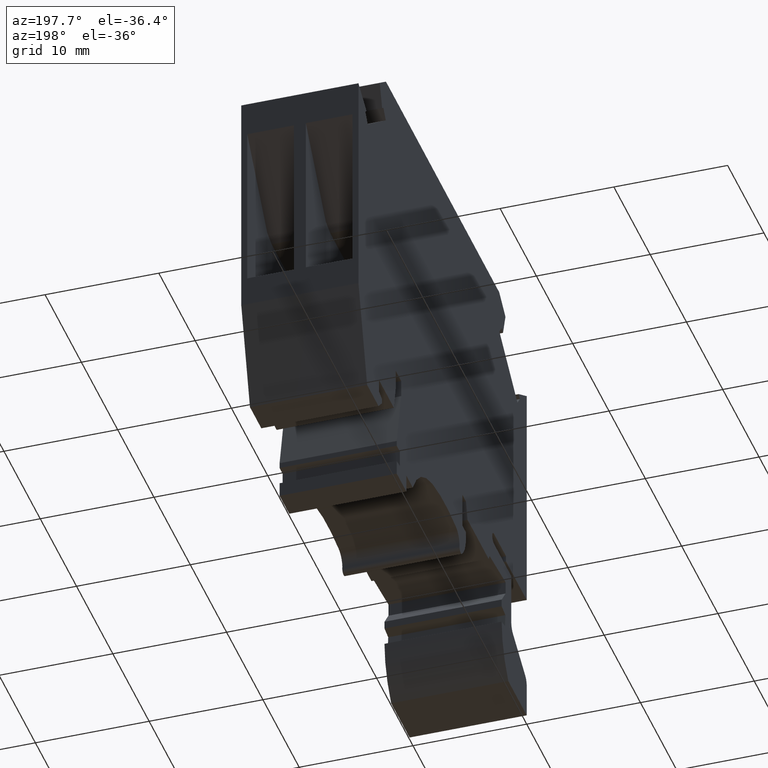
[diagram: clean part render]
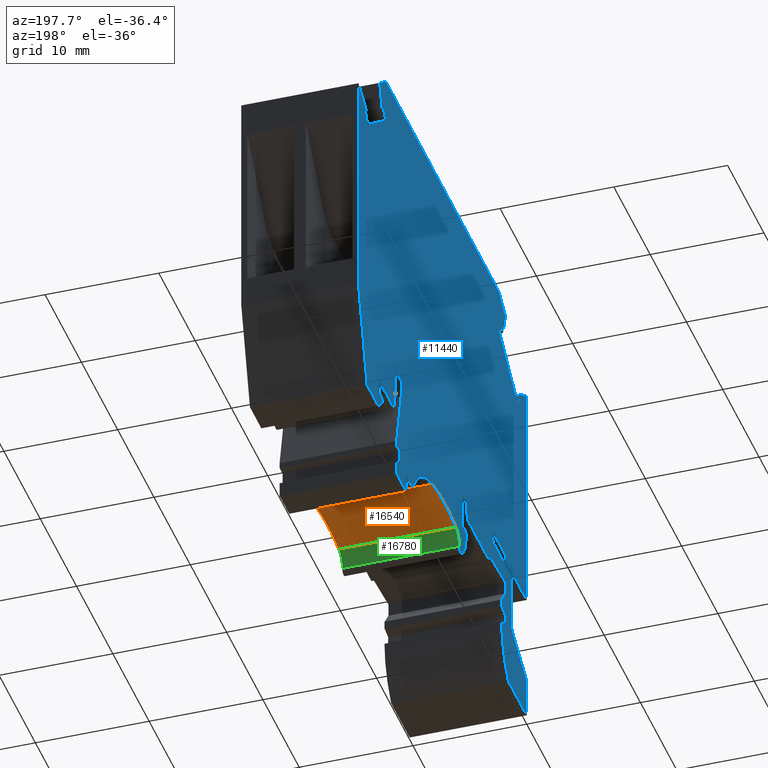
[diagram: same view with three faces highlighted in distinct colors, each labeled with its STEP entity id]
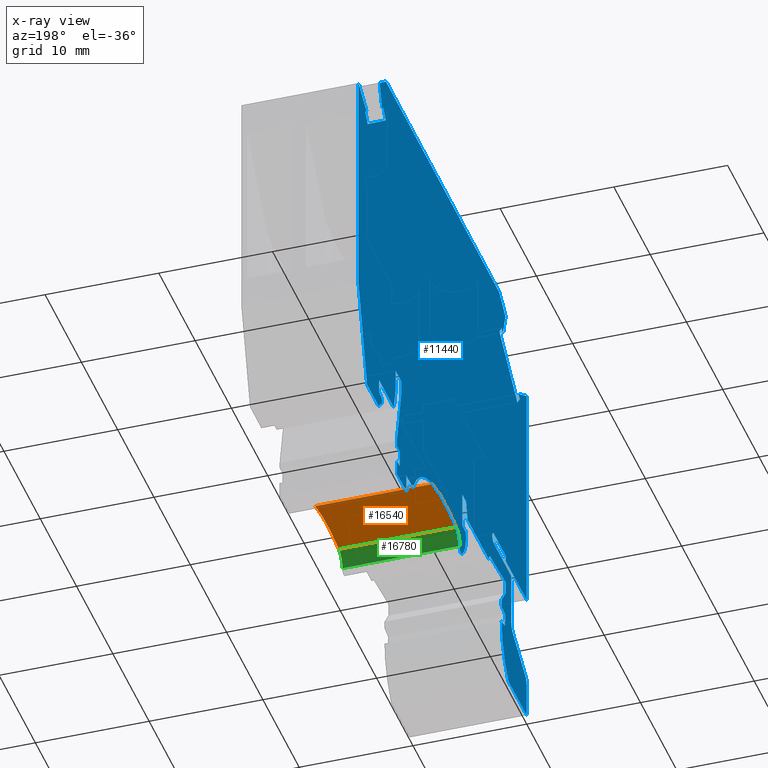
[diagram: x-ray of the same camera — body ghosted, the three highlighted faces saturated]
A machine part, auxiliary view with three faces highlighted in distinct colors.
The next image is the same camera in x-ray (body ghosted, the three faces saturated) — at least one of them is partly hidden behind the body in this view.
Their STEP definitions:

[orange] entity #16540 — the highlighted cylindrical surface (partial cylindrical patch) has radius 16.2 mm, axis along (1, -0, 0).
#3330=CARTESIAN_POINT('',(-18.8912739295069,10.0555369279165,10.3));
#3340=VERTEX_POINT('',#3330);
#3370=CARTESIAN_POINT('',(-22.3520985338077,-5.77047624844183,10.3));
#3380=DIRECTION('',(0.,0.,1.));
#3390=DIRECTION('',(1.,0.,0.));
#3400=AXIS2_PLACEMENT_3D('',#3370,#3380,#3390);
#3410=CIRCLE('',#3400,16.2);
#3420=CARTESIAN_POINT('',(-25.3616999403209,10.1475104136305,10.3));
#3430=VERTEX_POINT('',#3420);
#3440=EDGE_CURVE('',#3340,#3430,#3410,.T.);
#8020=CARTESIAN_POINT('',(-25.3616999403209,10.1475104136305,
-7.105427357601E-15));
#8030=VERTEX_POINT('',#8020);
#8060=CARTESIAN_POINT('',(-22.3520985338077,-5.77047624844183,
3.5527136788005E-15));
#8070=DIRECTION('',(0.,0.,1.));
#8080=DIRECTION('',(1.,0.,0.));
#8090=AXIS2_PLACEMENT_3D('',#8060,#8070,#8080);
#8100=CIRCLE('',#8090,16.2);
#8110=CARTESIAN_POINT('',(-18.8912739295069,10.0555369279165,
-7.105427357601E-15));
#8120=VERTEX_POINT('',#8110);
#8130=EDGE_CURVE('',#8120,#8030,#8100,.T.);
#16330=CARTESIAN_POINT('',(-22.3520985338077,-5.77047624844183,5.15));
#16340=DIRECTION('',(0.,0.,1.));
#16350=DIRECTION('',(1.,0.,0.));
#16360=AXIS2_PLACEMENT_3D('',#16330,#16340,#16350);
#16370=CYLINDRICAL_SURFACE('',#16360,16.2);
#16380=ORIENTED_EDGE('',*,*,#3440,.T.);
#16390=CARTESIAN_POINT('',(-18.8912739295069,10.0555369279165,5.15));
#16400=DIRECTION('',(0.,0.,-1.));
#16410=VECTOR('',#16400,1.);
#16420=LINE('',#16390,#16410);
#16430=EDGE_CURVE('',#3340,#8120,#16420,.T.);
#16440=ORIENTED_EDGE('',*,*,#16430,.F.);
#16450=ORIENTED_EDGE('',*,*,#8130,.F.);
#16460=CARTESIAN_POINT('',(-25.3616999403209,10.1475104136305,5.15));
#16470=DIRECTION('',(0.,0.,-1.));
#16480=VECTOR('',#16470,1.);
#16490=LINE('',#16460,#16480);
#16500=EDGE_CURVE('',#3430,#8030,#16490,.T.);
#16510=ORIENTED_EDGE('',*,*,#16500,.T.);
#16520=EDGE_LOOP('',(#16510,#16450,#16440,#16380));
#16530=FACE_OUTER_BOUND('',#16520,.T.);
#16540=ADVANCED_FACE('',(#16530),#16370,.F.);

[blue] entity #11440 — the highlighted planar face has unit normal (1, -0, 0).
#5760=CARTESIAN_POINT('',(0.,0.,0.));
#5770=DIRECTION('',(0.,0.,1.));
#5780=DIRECTION('',(1.,0.,0.));
#5790=AXIS2_PLACEMENT_3D('',#5760,#5770,#5780);
#5800=PLANE('',#5790);
#5810=CARTESIAN_POINT('',(-39.1520985338078,1.77635683940025E-15,
-7.105427357601E-15));
#5820=DIRECTION('',(0.,1.,0.));
#5830=VECTOR('',#5820,1.);
#5840=LINE('',#5810,#5830);
#5850=CARTESIAN_POINT('',(-39.1520985338078,16.2295237515583,
-7.105427357601E-15));
#5860=VERTEX_POINT('',#5850);
#5870=CARTESIAN_POINT('',(-39.1520985338078,16.7795237515581,
-7.105427357601E-15));
#5880=VERTEX_POINT('',#5870);
#5890=EDGE_CURVE('',#5860,#5880,#5840,.T.);
#5900=ORIENTED_EDGE('',*,*,#5890,.F.);
#5910=CARTESIAN_POINT('',(0.,16.7795237515581,-7.105427357601E-15));
#5920=DIRECTION('',(-1.,0.,0.));
#5930=VECTOR('',#5920,1.);
#5940=LINE('',#5910,#5930);
#5950=CARTESIAN_POINT('',(-35.8770985338078,16.7795237515581,
-7.105427357601E-15));
#5960=VERTEX_POINT('',#5950);
#5970=EDGE_CURVE('',#5960,#5880,#5940,.T.);
#5980=ORIENTED_EDGE('',*,*,#5970,.T.);
#5990=CARTESIAN_POINT('',(-35.8770985338078,16.2545237515581,
3.5527136788005E-15));
#6000=DIRECTION('',(0.,0.,-1.));
#6010=DIRECTION('',(-1.,0.,0.));
#6020=AXIS2_PLACEMENT_3D('',#5990,#6000,#6010);
#6030=CIRCLE('',#6020,0.525);
#6040=CARTESIAN_POINT('',(-35.8770985306198,15.7295237515581,
-7.105427357601E-15));
#6050=VERTEX_POINT('',#6040);
#6060=EDGE_CURVE('',#5960,#6050,#6030,.T.);
#6070=ORIENTED_EDGE('',*,*,#6060,.F.);
#6080=CARTESIAN_POINT('',(-56.8069065338077,15.7295237515581,
3.5527136788005E-15));
#6090=DIRECTION('',(-1.,-3.21581169129174E-15,0.));
#6100=VECTOR('',#6090,1.);
#6110=LINE('',#6080,#6100);
#6120=CARTESIAN_POINT('',(-40.6020985338077,15.7295237515581,
-7.105427357601E-15));
#6130=VERTEX_POINT('',#6120);
#6140=EDGE_CURVE('',#6050,#6130,#6110,.T.);
#6150=ORIENTED_EDGE('',*,*,#6140,.F.);
#6160=CARTESIAN_POINT('',(-40.6020985338077,9.53385075155828,
3.5527136788005E-15));
#6170=DIRECTION('',(0.,1.,0.));
#6180=VECTOR('',#6170,1.);
#6190=LINE('',#6160,#6180);
#6200=CARTESIAN_POINT('',(-40.6020985338077,10.8802279070745,
-7.105427357601E-15));
#6210=VERTEX_POINT('',#6200);
#6220=EDGE_CURVE('',#6210,#6130,#6190,.T.);
#6230=ORIENTED_EDGE('',*,*,#6220,.T.);
#6240=CARTESIAN_POINT('',(-41.6020985338077,10.8802279070745,
3.5527136788005E-15));
#6250=DIRECTION('',(0.,0.,-1.));
#6260=DIRECTION('',(-1.,0.,0.));
#6270=AXIS2_PLACEMENT_3D('',#6240,#6250,#6260);
#6280=CIRCLE('',#6270,1.);
#6290=CARTESIAN_POINT('',(-41.1020985338077,10.01420250329,
-7.105427357601E-15));
#6300=VERTEX_POINT('',#6290);
#6310=EDGE_CURVE('',#6210,#6300,#6280,.T.);
#6320=ORIENTED_EDGE('',*,*,#6310,.F.);
#6330=CARTESIAN_POINT('',(-58.8819065338077,-0.250974431649825,
3.5527136788005E-15));
#6340=DIRECTION('',(0.866025403784439,0.5,0.));
#6350=VECTOR('',#6340,1.);
#6360=LINE('',#6330,#6350);
#6370=CARTESIAN_POINT('',(-44.4020985338231,8.10894661499089,
-7.105427357601E-15));
#6380=VERTEX_POINT('',#6370);
#6390=EDGE_CURVE('',#6380,#6300,#6360,.T.);
#6400=ORIENTED_EDGE('',*,*,#6390,.T.);
#6410=CARTESIAN_POINT('',(-43.9520985338077,7.32952375155828,
3.5527136788005E-15));
#6420=DIRECTION('',(0.,0.,1.));
#6430=DIRECTION('',(0.,-1.,0.));
#6440=AXIS2_PLACEMENT_3D('',#6410,#6420,#6430);
#6450=CIRCLE('',#6440,0.900000000030733);
#6460=CARTESIAN_POINT('',(-44.8520985338077,7.32952375155828,
3.5527136788005E-15));
#6470=VERTEX_POINT('',#6460);
#6480=EDGE_CURVE('',#6380,#6470,#6450,.T.);
#6490=ORIENTED_EDGE('',*,*,#6480,.F.);
#6500=CARTESIAN_POINT('',(-44.8520985338077,9.53385075155828,
3.5527136788005E-15));
#6510=DIRECTION('',(0.,1.,0.));
#6520=VECTOR('',#6510,1.);
#6530=LINE('',#6500,#6520);
#6540=CARTESIAN_POINT('',(-44.8520985338077,4.22952375155828,
3.5527136788005E-15));
#6550=VERTEX_POINT('',#6540);
#6560=EDGE_CURVE('',#6550,#6470,#6530,.T.);
#6570=ORIENTED_EDGE('',*,*,#6560,.T.);
#6580=CARTESIAN_POINT('',(-56.8069065338077,4.22952375155828,
3.5527136788005E-15));
#6590=DIRECTION('',(-1.,0.,0.));
#6600=VECTOR('',#6590,1.);
#6610=LINE('',#6580,#6600);
#6620=CARTESIAN_POINT('',(-39.7810787227897,4.22952375155828,
-7.105427357601E-15));
#6630=VERTEX_POINT('',#6620);
#6640=EDGE_CURVE('',#6630,#6550,#6610,.T.);
#6650=ORIENTED_EDGE('',*,*,#6640,.T.);
#6660=CARTESIAN_POINT('',(-45.4194206776555,9.12952375155828,
3.5527136788005E-15));
#6670=DIRECTION('',(0.,0.,1.));
#6680=DIRECTION('',(1.,0.,0.));
#6690=AXIS2_PLACEMENT_3D('',#6660,#6670,#6680);
#6700=CIRCLE('',#6690,7.47);
#6710=CARTESIAN_POINT('',(-37.949420700094,9.12894476048504,
-7.105427357601E-15));
#6720=VERTEX_POINT('',#6710);
#6730=EDGE_CURVE('',#6630,#6720,#6700,.T.);
#6740=ORIENTED_EDGE('',*,*,#6730,.F.);
#6750=CARTESIAN_POINT('',(0.,0.923664609113366,-7.105427357601E-15));
#6760=DIRECTION('',(0.977414165439867,-0.211332792527539,0.));
#6770=VECTOR('',#6760,1.);
#6780=LINE('',#6750,#6770);
#6790=CARTESIAN_POINT('',(-38.8770985338077,9.32952375155828,
-7.105427357601E-15));
#6800=VERTEX_POINT('',#6790);
#6810=EDGE_CURVE('',#6800,#6720,#6780,.T.);
#6820=ORIENTED_EDGE('',*,*,#6810,.T.);
#6830=CARTESIAN_POINT('',(-38.8941257838077,9.53385075155828,
3.5527136788005E-15));
#6840=DIRECTION('',(0.0830454798537353,-0.99654575824488,0.));
#6850=VECTOR('',#6840,1.);
#6860=LINE('',#6830,#6850);
#6870=CARTESIAN_POINT('',(-38.9770985338077,10.5295237515583,
-7.105427357601E-15));
#6880=VERTEX_POINT('',#6870);
#6890=EDGE_CURVE('',#6880,#6800,#6860,.T.);
#6900=ORIENTED_EDGE('',*,*,#6890,.T.);
#6910=CARTESIAN_POINT('',(-58.7319065338077,6.67492706863146,
3.5527136788005E-15));
#6920=DIRECTION('',(-0.981490592025699,-0.191510359419648,0.));
#6930=VECTOR('',#6920,1.);
#6940=LINE('',#6910,#6930);
#6950=CARTESIAN_POINT('',(-37.9520985338077,10.7295237515583,
-7.105427357601E-15));
#6960=VERTEX_POINT('',#6950);
#6970=EDGE_CURVE('',#6960,#6880,#6940,.T.);
#6980=ORIENTED_EDGE('',*,*,#6970,.T.);
#6990=CARTESIAN_POINT('',(-37.9520985338077,9.53385075155828,
3.5527136788005E-15));
#7000=DIRECTION('',(0.,-1.,0.));
#7010=VECTOR('',#7000,1.);
#7020=LINE('',#6990,#7010);
#7030=CARTESIAN_POINT('',(-37.9520985338077,11.4295237515583,
-7.105427357601E-15));
#7040=VERTEX_POINT('',#7030);
#7050=EDGE_CURVE('',#7040,#6960,#7020,.T.);
#7060=ORIENTED_EDGE('',*,*,#7050,.T.);
#7070=CARTESIAN_POINT('',(-36.4626411766648,9.53385075155828,
3.5527136788005E-15));
#7080=DIRECTION('',(0.617821551931904,-0.786318338822423,0.));
#7090=VECTOR('',#7080,1.);
#7100=LINE('',#7070,#7090);
#7110=CARTESIAN_POINT('',(-39.0520985338077,12.8295237515583,
3.5527136788005E-15));
#7120=VERTEX_POINT('',#7110);
#7130=EDGE_CURVE('',#7120,#7040,#7100,.T.);
#7140=ORIENTED_EDGE('',*,*,#7130,.T.);
#7150=CARTESIAN_POINT('',(-39.0520985338077,9.53385075155828,
3.5527136788005E-15));
#7160=DIRECTION('',(0.,-1.,0.));
#7170=VECTOR('',#7160,1.);
#7180=LINE('',#7150,#7170);
#7190=CARTESIAN_POINT('',(-39.0520985338077,13.9795237515583,
-7.105427357601E-15));
#7200=VERTEX_POINT('',#7190);
#7210=EDGE_CURVE('',#7200,#7120,#7180,.T.);
#7220=ORIENTED_EDGE('',*,*,#7210,.T.);
#7230=CARTESIAN_POINT('',(-56.8069065338077,15.3882122951596,
3.5527136788005E-15));
#7240=DIRECTION('',(-0.996867266307106,0.0790926884446175,0.));
#7250=VECTOR('',#7240,1.);
#7260=LINE('',#7230,#7250);
#7270=CARTESIAN_POINT('',(-34.6407736684025,13.6295237515583,
-7.105427357601E-15));
#7280=VERTEX_POINT('',#7270);
#7290=EDGE_CURVE('',#7280,#7200,#7260,.T.);
#7300=ORIENTED_EDGE('',*,*,#7290,.T.);
#7310=CARTESIAN_POINT('',(-26.771764461514,1.77635683940025E-15,
-7.105427357601E-15));
#7320=DIRECTION('',(-0.5,0.866025403784439,0.));
#7330=VECTOR('',#7320,1.);
#7340=LINE('',#7310,#7330);
#7350=CARTESIAN_POINT('',(-34.3520985338076,13.1295237515581,
-7.105427357601E-15));
#7360=VERTEX_POINT('',#7350);
#7370=EDGE_CURVE('',#7360,#7280,#7340,.T.);
#7380=ORIENTED_EDGE('',*,*,#7370,.T.);
#7390=CARTESIAN_POINT('',(0.,13.1295237515583,-7.105427357601E-15));
#7400=DIRECTION('',(-1.,-5.25286014369684E-15,0.));
#7410=VECTOR('',#7400,1.);
#7420=LINE('',#7390,#7410);
#7430=CARTESIAN_POINT('',(-28.5520985338077,13.1295237515582,
-7.105427357601E-15));
#7440=VERTEX_POINT('',#7430);
#7450=EDGE_CURVE('',#7440,#7360,#7420,.T.);
#7460=ORIENTED_EDGE('',*,*,#7450,.T.);
#7470=CARTESIAN_POINT('',(-29.515556210404,9.53385075155829,
3.5527136788005E-15));
#7480=DIRECTION('',(0.258819045102504,0.965925826289073,0.));
#7490=VECTOR('',#7480,1.);
#7500=LINE('',#7470,#7490);
#7510=CARTESIAN_POINT('',(-28.1233798259179,14.7295237515582,
-7.105427357601E-15));
#7520=VERTEX_POINT('',#7510);
#7530=EDGE_CURVE('',#7440,#7520,#7500,.T.);
#7540=ORIENTED_EDGE('',*,*,#7530,.F.);
#7550=CARTESIAN_POINT('',(-56.8069065338077,14.7295237515582,
3.5527136788005E-15));
#7560=DIRECTION('',(-1.,0.,0.));
#7570=VECTOR('',#7560,1.);
#7580=LINE('',#7550,#7570);
#7590=CARTESIAN_POINT('',(-27.1270985338077,14.7295237515582,
-7.105427357601E-15));
#7600=VERTEX_POINT('',#7590);
#7610=EDGE_CURVE('',#7600,#7520,#7580,.T.);
#7620=ORIENTED_EDGE('',*,*,#7610,.T.);
#7630=CARTESIAN_POINT('',(-27.1270985338077,9.53385075155829,
3.5527136788005E-15));
#7640=DIRECTION('',(0.,1.,0.));
#7650=VECTOR('',#7640,1.);
#7660=LINE('',#7630,#7650);
#7670=CARTESIAN_POINT('',(-27.1270985338077,11.5119792835918,
-7.105427357601E-15));
#7680=VERTEX_POINT('',#7670);
#7690=EDGE_CURVE('',#7680,#7600,#7660,.T.);
#7700=ORIENTED_EDGE('',*,*,#7690,.T.);
#7710=CARTESIAN_POINT('',(-21.6770985338077,11.5119792835918,
3.5527136788005E-15));
#7720=DIRECTION('',(1.,0.,0.));
#7730=VECTOR('',#7720,1.);
#7740=LINE('',#7710,#7730);
#7750=CARTESIAN_POINT('',(-28.0887237545537,11.5119792835918,
-7.105427357601E-15));
#7760=VERTEX_POINT('',#7750);
#7770=EDGE_CURVE('',#7760,#7680,#7740,.T.);
#7780=ORIENTED_EDGE('',*,*,#7770,.T.);
#7790=CARTESIAN_POINT('',(-24.779452258914,10.9911893373118,
3.5527136788005E-15));
#7800=DIRECTION('',(0.,0.,1.));
#7810=DIRECTION('',(1.,0.,0.));
#7820=AXIS2_PLACEMENT_3D('',#7790,#7800,#7810);
#7830=CIRCLE('',#7820,3.34999999999999);
#7840=CARTESIAN_POINT('',(-26.9911861643017,8.47509451959159,
-7.105427357601E-15));
#7850=VERTEX_POINT('',#7840);
#7860=EDGE_CURVE('',#7760,#7850,#7830,.T.);
#7870=ORIENTED_EDGE('',*,*,#7860,.F.);
#7880=CARTESIAN_POINT('',(-26.7270985338077,8.77552375155818,
3.5527136788005E-15));
#7890=DIRECTION('',(0.,0.,1.));
#7900=DIRECTION('',(1.,0.,0.));
#7910=AXIS2_PLACEMENT_3D('',#7880,#7890,#7900);
#7920=CIRCLE('',#7910,0.399999999999988);
#7930=CARTESIAN_POINT('',(-26.3300155260562,8.82374288629714,
-7.105427357601E-15));
#7940=VERTEX_POINT('',#7930);
#7950=EDGE_CURVE('',#7850,#7940,#7920,.T.);
#7960=ORIENTED_EDGE('',*,*,#7950,.F.);
#7970=CARTESIAN_POINT('',(-25.1387665028014,8.96840029051405,
3.5527136788005E-15));
#7980=DIRECTION('',(0.,0.,1.));
#7990=DIRECTION('',(1.,0.,0.));
#8000=AXIS2_PLACEMENT_3D('',#7970,#7980,#7990);
#8010=CIRCLE('',#8000,1.19999999999999);
#8020=CARTESIAN_POINT('',(-25.3616999403209,10.1475104136305,
-7.105427357601E-15));
#8030=VERTEX_POINT('',#8020);
#8040=EDGE_CURVE('',#8030,#7940,#8010,.T.);
#8050=ORIENTED_EDGE('',*,*,#8040,.T.);
#8060=CARTESIAN_POINT('',(-22.3520985338077,-5.77047624844183,
3.5527136788005E-15));
#8070=DIRECTION('',(0.,0.,1.));
#8080=DIRECTION('',(1.,0.,0.));
#8090=AXIS2_PLACEMENT_3D('',#8060,#8070,#8080);
#8100=CIRCLE('',#8090,16.2);
#8110=CARTESIAN_POINT('',(-18.8912739295069,10.0555369279165,
-7.105427357601E-15));
#8120=VERTEX_POINT('',#8110);
#8130=EDGE_CURVE('',#8120,#8030,#8100,.T.);
#8140=ORIENTED_EDGE('',*,*,#8130,.T.);
#8150=CARTESIAN_POINT('',(-20.6003231168159,2.24022177909756,
3.5527136788005E-15));
#8160=DIRECTION('',(0.,0.,1.));
#8170=DIRECTION('',(1.,0.,0.));
#8180=AXIS2_PLACEMENT_3D('',#8150,#8160,#8170);
#8190=CIRCLE('',#8180,8.00000000000001);
#8200=CARTESIAN_POINT('',(-13.4760350012745,5.87952375155818,
-7.105427357601E-15));
#8210=VERTEX_POINT('',#8200);
#8220=EDGE_CURVE('',#8210,#8120,#8190,.T.);
#8230=ORIENTED_EDGE('',*,*,#8220,.T.);
#8240=CARTESIAN_POINT('',(-56.8069065338077,5.87952375155818,
3.5527136788005E-15));
#8250=DIRECTION('',(-1.,0.,0.));
#8260=VECTOR('',#8250,1.);
#8270=LINE('',#8240,#8260);
#8280=CARTESIAN_POINT('',(-11.7020985338077,5.87952375155818,
-7.105427357601E-15));
#8290=VERTEX_POINT('',#8280);
#8300=EDGE_CURVE('',#8290,#8210,#8270,.T.);
#8310=ORIENTED_EDGE('',*,*,#8300,.T.);
#8320=CARTESIAN_POINT('',(-11.7020985338077,9.53385075155829,
3.5527136788005E-15));
#8330=DIRECTION('',(0.,-1.,0.));
#8340=VECTOR('',#8330,1.);
#8350=LINE('',#8320,#8340);
#8360=CARTESIAN_POINT('',(-11.7020985338077,4.22952375155818,
-7.105427357601E-15));
#8370=VERTEX_POINT('',#8360);
#8380=EDGE_CURVE('',#8290,#8370,#8350,.T.);
#8390=ORIENTED_EDGE('',*,*,#8380,.F.);
#8400=CARTESIAN_POINT('',(0.,4.22952375155818,-7.105427357601E-15));
#8410=DIRECTION('',(-1.,0.,0.));
#8420=VECTOR('',#8410,1.);
#8430=LINE('',#8400,#8420);
#8440=CARTESIAN_POINT('',(-9.0520985338077,4.22952375155818,
-7.105427357601E-15));
#8450=VERTEX_POINT('',#8440);
#8460=EDGE_CURVE('',#8450,#8370,#8430,.T.);
#8470=ORIENTED_EDGE('',*,*,#8460,.T.);
#8480=CARTESIAN_POINT('',(-9.0520985338077,1.77635683940025E-15,
-7.105427357601E-15));
#8490=DIRECTION('',(0.,1.,0.));
#8500=VECTOR('',#8490,1.);
#8510=LINE('',#8480,#8500);
#8520=CARTESIAN_POINT('',(-9.0520985338077,5.53713244721035,
-7.105427357601E-15));
#8530=VERTEX_POINT('',#8520);
#8540=EDGE_CURVE('',#8450,#8530,#8510,.T.);
#8550=ORIENTED_EDGE('',*,*,#8540,.F.);
#8560=CARTESIAN_POINT('',(0.,4.55320869353561,-7.105427357601E-15));
#8570=DIRECTION('',(0.994144463069457,-0.108059180768419,0.));
#8580=VECTOR('',#8570,1.);
#8590=LINE('',#8560,#8580);
#8600=CARTESIAN_POINT('',(-9.9020985338077,5.62952375155818,
-7.105427357601E-15));
#8610=VERTEX_POINT('',#8600);
#8620=EDGE_CURVE('',#8610,#8530,#8590,.T.);
#8630=ORIENTED_EDGE('',*,*,#8620,.T.);
#8640=CARTESIAN_POINT('',(-9.90209853380769,9.53385075155829,
3.5527136788005E-15));
#8650=DIRECTION('',(0.,-1.,0.));
#8660=VECTOR('',#8650,1.);
#8670=LINE('',#8640,#8660);
#8680=CARTESIAN_POINT('',(-9.90209853380769,7.12952375155817,
-7.105427357601E-15));
#8690=VERTEX_POINT('',#8680);
#8700=EDGE_CURVE('',#8690,#8610,#8670,.T.);
#8710=ORIENTED_EDGE('',*,*,#8700,.T.);
#8720=CARTESIAN_POINT('',(-56.8069065338077,7.12952375155817,
3.5527136788005E-15));
#8730=DIRECTION('',(-1.,0.,0.));
#8740=VECTOR('',#8730,1.);
#8750=LINE('',#8720,#8740);
#8760=CARTESIAN_POINT('',(-9.0520985338077,7.12952375155817,
-7.105427357601E-15));
#8770=VERTEX_POINT('',#8760);
#8780=EDGE_CURVE('',#8770,#8690,#8750,.T.);
#8790=ORIENTED_EDGE('',*,*,#8780,.T.);
#8800=CARTESIAN_POINT('',(-9.0520985338077,9.53385075155829,
3.5527136788005E-15));
#8810=DIRECTION('',(0.,1.,0.));
#8820=VECTOR('',#8810,1.);
#8830=LINE('',#8800,#8820);
#8840=CARTESIAN_POINT('',(-9.0520985338077,7.62952375155818,
-7.105427357601E-15));
#8850=VERTEX_POINT('',#8840);
#8860=EDGE_CURVE('',#8770,#8850,#8830,.T.);
#8870=ORIENTED_EDGE('',*,*,#8860,.F.);
#8880=CARTESIAN_POINT('',(-9.47427766563456,9.53385075155829,
3.5527136788005E-15));
#8890=DIRECTION('',(0.216439613938103,-0.976296007119933,0.));
#8900=VECTOR('',#8890,1.);
#8910=LINE('',#8880,#8900);
#8920=CARTESIAN_POINT('',(-10.2770985338077,13.1551416685442,
-7.105427357601E-15));
#8930=VERTEX_POINT('',#8920);
#8940=EDGE_CURVE('',#8930,#8850,#8910,.T.);
#8950=ORIENTED_EDGE('',*,*,#8940,.T.);
#8960=CARTESIAN_POINT('',(-10.2770985338077,9.53385075155829,
3.5527136788005E-15));
#8970=DIRECTION('',(0.,-1.,0.));
#8980=VECTOR('',#8970,1.);
#8990=LINE('',#8960,#8980);
#9000=CARTESIAN_POINT('',(-10.2770985338077,14.7295237515582,
-7.105427357601E-15));
#9010=VERTEX_POINT('',#9000);
#9020=EDGE_CURVE('',#9010,#8930,#8990,.T.);
#9030=ORIENTED_EDGE('',*,*,#9020,.T.);
#9040=CARTESIAN_POINT('',(-56.8069065338077,14.7295237515582,
3.5527136788005E-15));
#9050=DIRECTION('',(-1.,0.,0.));
#9060=VECTOR('',#9050,1.);
#9070=LINE('',#9040,#9060);
#9080=CARTESIAN_POINT('',(-8.77709853380779,14.7295237515582,
-7.105427357601E-15));
#9090=VERTEX_POINT('',#9080);
#9100=EDGE_CURVE('',#9090,#9010,#9070,.T.);
#9110=ORIENTED_EDGE('',*,*,#9100,.T.);
#9120=CARTESIAN_POINT('',(-8.77709853380779,9.53385075155829,
3.5527136788005E-15));
#9130=DIRECTION('',(0.,1.,0.));
#9140=VECTOR('',#9130,1.);
#9150=LINE('',#9120,#9140);
#9160=CARTESIAN_POINT('',(-8.77709853380779,12.8976457159808,
-7.105427357601E-15));
#9170=VERTEX_POINT('',#9160);
#9180=EDGE_CURVE('',#9170,#9090,#9150,.T.);
#9190=ORIENTED_EDGE('',*,*,#9180,.T.);
#9200=CARTESIAN_POINT('',(-8.0313631439701,9.53385075155829,
3.5527136788005E-15));
#9210=DIRECTION('',(0.216439613938109,-0.976296007119932,0.));
#9220=VECTOR('',#9210,1.);
#9230=LINE('',#9200,#9220);
#9240=CARTESIAN_POINT('',(-8.25209853380777,10.5295237515582,
-7.105427357601E-15));
#9250=VERTEX_POINT('',#9240);
#9260=EDGE_CURVE('',#9170,#9250,#9230,.T.);
#9270=ORIENTED_EDGE('',*,*,#9260,.F.);
#9280=CARTESIAN_POINT('',(-56.8069065338077,10.5295237515582,
3.5527136788005E-15));
#9290=DIRECTION('',(-1.,2.71413735556692E-16,0.));
#9300=VECTOR('',#9290,1.);
#9310=LINE('',#9280,#9300);
#9320=CARTESIAN_POINT('',(-4.17709853380779,10.5295237515582,
-7.105427357601E-15));
#9330=VERTEX_POINT('',#9320);
#9340=EDGE_CURVE('',#9330,#9250,#9310,.T.);
#9350=ORIENTED_EDGE('',*,*,#9340,.T.);
#9360=CARTESIAN_POINT('',(-4.1770985338078,9.53385075155829,
3.5527136788005E-15));
#9370=DIRECTION('',(0.,1.,0.));
#9380=VECTOR('',#9370,1.);
#9390=LINE('',#9360,#9380);
#9400=CARTESIAN_POINT('',(-4.17709853380779,9.3295237515582,
-7.105427357601E-15));
#9410=VERTEX_POINT('',#9400);
#9420=EDGE_CURVE('',#9410,#9330,#9390,.T.);
#9430=ORIENTED_EDGE('',*,*,#9420,.T.);
#9440=CARTESIAN_POINT('',(-56.8069065338077,-3.82792824844155,
3.5527136788005E-15));
#9450=DIRECTION('',(-0.970142500145333,-0.242535625036329,0.));
#9460=VECTOR('',#9450,1.);
#9470=LINE('',#9440,#9460);
#9480=CARTESIAN_POINT('',(-4.97709853380779,9.12952375155822,
-7.105427357601E-15));
#9490=VERTEX_POINT('',#9480);
#9500=EDGE_CURVE('',#9410,#9490,#9470,.T.);
#9510=ORIENTED_EDGE('',*,*,#9500,.F.);
#9520=CARTESIAN_POINT('',(-4.97709853380779,9.53385075155829,
3.5527136788005E-15));
#9530=DIRECTION('',(0.,1.,0.));
#9540=VECTOR('',#9530,1.);
#9550=LINE('',#9520,#9540);
#9560=CARTESIAN_POINT('',(-4.97709853380779,8.67952375155819,
-7.105427357601E-15));
#9570=VERTEX_POINT('',#9560);
#9580=EDGE_CURVE('',#9570,#9490,#9550,.T.);
#9590=ORIENTED_EDGE('',*,*,#9580,.T.);
#9600=CARTESIAN_POINT('',(-56.8069065338077,60.5093317515567,
3.5527136788005E-15));
#9610=DIRECTION('',(-0.707106781186557,0.707106781186538,0.));
#9620=VECTOR('',#9610,1.);
#9630=LINE('',#9600,#9620);
#9640=CARTESIAN_POINT('',(-4.02709853380777,7.7295237515582,
-7.105427357601E-15));
#9650=VERTEX_POINT('',#9640);
#9660=EDGE_CURVE('',#9650,#9570,#9630,.T.);
#9670=ORIENTED_EDGE('',*,*,#9660,.T.);
#9680=CARTESIAN_POINT('',(-56.8069065338077,7.7295237515582,
3.5527136788005E-15));
#9690=DIRECTION('',(1.,0.,0.));
#9700=VECTOR('',#9690,1.);
#9710=LINE('',#9680,#9700);
#9720=CARTESIAN_POINT('',(-0.892444557849712,7.7295237515582,
-7.105427357601E-15));
#9730=VERTEX_POINT('',#9720);
#9740=EDGE_CURVE('',#9650,#9730,#9710,.T.);
#9750=ORIENTED_EDGE('',*,*,#9740,.F.);
#9760=CARTESIAN_POINT('',(-0.408976595318013,9.53385075155829,
3.5527136788005E-15));
#9770=DIRECTION('',(-0.258819045102521,-0.965925826289068,0.));
#9780=VECTOR('',#9770,1.);
#9790=LINE('',#9760,#9780);
#9800=CARTESIAN_POINT('',(1.49790146619231,16.6504165609533,
-7.105427357601E-15));
#9810=VERTEX_POINT('',#9800);
#9820=EDGE_CURVE('',#9810,#9730,#9790,.T.);
#9830=ORIENTED_EDGE('',*,*,#9820,.T.);
#9840=CARTESIAN_POINT('',(1.49790146619231,1.77635683940025E-15,
-7.105427357601E-15));
#9850=DIRECTION('',(0.,-1.,0.));
#9860=VECTOR('',#9850,1.);
#9870=LINE('',#9840,#9860);
#9880=CARTESIAN_POINT('',(1.49790146619231,37.4391457022167,
-7.105427357601E-15));
#9890=VERTEX_POINT('',#9880);
#9900=EDGE_CURVE('',#9890,#9810,#9870,.T.);
#9910=ORIENTED_EDGE('',*,*,#9900,.T.);
#9920=CARTESIAN_POINT('',(0.,36.5295687935413,-7.105427357601E-15));
#9930=DIRECTION('',(-0.854752900484266,-0.519035142465069,0.));
#9940=VECTOR('',#9930,1.);
#9950=LINE('',#9920,#9940);
#9960=CARTESIAN_POINT('',(-0.734075340231863,36.0838131855972,
-7.105427357601E-15));
#9970=VERTEX_POINT('',#9960);
#9980=EDGE_CURVE('',#9890,#9970,#9950,.T.);
#9990=ORIENTED_EDGE('',*,*,#9980,.F.);
#10000=CARTESIAN_POINT('',(0.,35.510290673501,-7.105427357601E-15));
#10010=DIRECTION('',(-0.788010753606682,0.61566147532571,0.));
#10020=VECTOR('',#10010,1.);
#10030=LINE('',#10000,#10020);
#10040=CARTESIAN_POINT('',(-0.38932063552879,35.8144612901421,
-7.105427357601E-15));
#10050=VERTEX_POINT('',#10040);
#10060=EDGE_CURVE('',#10050,#9970,#10030,.T.);
#10070=ORIENTED_EDGE('',*,*,#10060,.T.);
#10080=CARTESIAN_POINT('',(-20.9219839051481,9.53385075155829,
3.5527136788005E-15));
#10090=DIRECTION('',(0.61566147532571,0.788010753606682,0.));
#10100=VECTOR('',#10090,1.);
#10110=LINE('',#10080,#10100);
#10120=CARTESIAN_POINT('',(-1.04807841412707,34.9712897837833,
-7.105427357601E-15));
#10130=VERTEX_POINT('',#10120);
#10140=EDGE_CURVE('',#10130,#10050,#10110,.T.);
#10150=ORIENTED_EDGE('',*,*,#10140,.T.);
#10160=CARTESIAN_POINT('',(-56.8069065338077,78.534860744549,
3.5527136788005E-15));
#10170=DIRECTION('',(0.788010753606717,-0.615661475325664,0.));
#10180=VECTOR('',#10170,1.);
#10190=LINE('',#10160,#10180);
#10200=CARTESIAN_POINT('',(-6.03224643068964,38.8653486152182,
-7.105427357601E-15));
#10210=VERTEX_POINT('',#10200);
#10220=EDGE_CURVE('',#10210,#10130,#10190,.T.);
#10230=ORIENTED_EDGE('',*,*,#10220,.T.);
#10240=CARTESIAN_POINT('',(-28.9485241154827,9.53385075155829,
3.5527136788005E-15));
#10250=DIRECTION('',(-0.61566147532571,-0.788010753606682,0.));
#10260=VECTOR('',#10250,1.);
#10270=LINE('',#10240,#10260);
#10280=CARTESIAN_POINT('',(-5.37348865209113,39.7085201215773,
-7.105427357601E-15));
#10290=VERTEX_POINT('',#10280);
#10300=EDGE_CURVE('',#10290,#10210,#10270,.T.);
#10310=ORIENTED_EDGE('',*,*,#10300,.T.);
#10320=CARTESIAN_POINT('',(0.,35.510290673501,-7.105427357601E-15));
#10330=DIRECTION('',(0.788010753606682,-0.61566147532571,0.));
#10340=VECTOR('',#10330,1.);
#10350=LINE('',#10320,#10340);
#10360=CARTESIAN_POINT('',(-5.02873394738817,39.4391682261223,
-7.105427357601E-15));
#10370=VERTEX_POINT('',#10360);
#10380=EDGE_CURVE('',#10290,#10370,#10350,.T.);
#10390=ORIENTED_EDGE('',*,*,#10380,.F.);
#10400=CARTESIAN_POINT('',(-17.2881698738166,1.77635683940025E-15,
-7.105427357601E-15));
#10410=DIRECTION('',(0.296834138566356,0.954929051909915,0.));
#10420=VECTOR('',#10410,1.);
#10430=LINE('',#10400,#10420);
#10440=CARTESIAN_POINT('',(-4.36063443706933,41.5884750243618,
-7.105427357601E-15));
#10450=VERTEX_POINT('',#10440);
#10460=EDGE_CURVE('',#10370,#10450,#10430,.T.);
#10470=ORIENTED_EDGE('',*,*,#10460,.F.);
#10480=CARTESIAN_POINT('',(0.,38.1815740162293,-7.105427357601E-15));
#10490=DIRECTION('',(-0.788010753606722,0.615661475325658,0.));
#10500=VECTOR('',#10490,1.);
#10510=LINE('',#10480,#10500);
#10520=CARTESIAN_POINT('',(-6.07709853380768,42.9295237515583,
-7.105427357601E-15));
#10530=VERTEX_POINT('',#10520);
#10540=EDGE_CURVE('',#10450,#10530,#10510,.T.);
#10550=ORIENTED_EDGE('',*,*,#10540,.F.);
#10560=CARTESIAN_POINT('',(-56.8069065338077,42.9295237515583,
3.5527136788005E-15));
#10570=DIRECTION('',(1.,0.,0.));
#10580=VECTOR('',#10570,1.);
#10590=LINE('',#10560,#10580);
#10600=CARTESIAN_POINT('',(-37.2770985338076,42.9295237515583,
-7.105427357601E-15));
#10610=VERTEX_POINT('',#10600);
#10620=EDGE_CURVE('',#10610,#10530,#10590,.T.);
#10630=ORIENTED_EDGE('',*,*,#10620,.T.);
#10640=CARTESIAN_POINT('',(0.,72.0535850338968,-7.105427357601E-15));
#10650=DIRECTION('',(0.788010753606722,0.615661475325658,0.));
#10660=VECTOR('',#10650,1.);
#10670=LINE('',#10640,#10660);
#10680=CARTESIAN_POINT('',(-38.9935626305461,41.5884750243617,
-7.105427357601E-15));
#10690=VERTEX_POINT('',#10680);
#10700=EDGE_CURVE('',#10690,#10610,#10670,.T.);
#10710=ORIENTED_EDGE('',*,*,#10700,.T.);
#10720=CARTESIAN_POINT('',(-26.0660271937965,1.77635683940025E-15,
-7.105427357601E-15));
#10730=DIRECTION('',(0.296834138566406,-0.9549290519099,0.));
#10740=VECTOR('',#10730,1.);
#10750=LINE('',#10720,#10740);
#10760=CARTESIAN_POINT('',(-38.3254631202272,39.4391682261223,
-7.105427357601E-15));
#10770=VERTEX_POINT('',#10760);
#10780=EDGE_CURVE('',#10690,#10770,#10750,.T.);
#10790=ORIENTED_EDGE('',*,*,#10780,.F.);
#10800=CARTESIAN_POINT('',(0.,69.3823016911731,-7.105427357601E-15));
#10810=DIRECTION('',(0.788010753606682,0.61566147532571,0.));
#10820=VECTOR('',#10810,1.);
#10830=LINE('',#10800,#10820);
#10840=CARTESIAN_POINT('',(-37.9807084155243,39.7085201215773,
-7.105427357601E-15));
#10850=VERTEX_POINT('',#10840);
#10860=EDGE_CURVE('',#10770,#10850,#10830,.T.);
#10870=ORIENTED_EDGE('',*,*,#10860,.F.);
#10880=CARTESIAN_POINT('',(-14.4056729521327,9.53385075155829,
3.5527136788005E-15));
#10890=DIRECTION('',(0.61566147532571,-0.788010753606682,0.));
#10900=VECTOR('',#10890,1.);
#10910=LINE('',#10880,#10900);
#10920=CARTESIAN_POINT('',(-37.3219506369257,38.8653486152182,
-7.105427357601E-15));
#10930=VERTEX_POINT('',#10920);
#10940=EDGE_CURVE('',#10850,#10930,#10910,.T.);
#10950=ORIENTED_EDGE('',*,*,#10940,.F.);
#10960=CARTESIAN_POINT('',(-56.8069065338077,23.6420326398668,
3.5527136788005E-15));
#10970=DIRECTION('',(-0.788010753606717,-0.615661475325664,0.));
#10980=VECTOR('',#10970,1.);
#10990=LINE('',#10960,#10980);
#11000=CARTESIAN_POINT('',(-42.3061186534883,34.9712897837833,
-7.105427357601E-15));
#11010=VERTEX_POINT('',#11000);
#11020=EDGE_CURVE('',#10930,#11010,#10990,.T.);
#11030=ORIENTED_EDGE('',*,*,#11020,.F.);
#11040=CARTESIAN_POINT('',(-22.4322131624673,9.53385075155829,
3.5527136788005E-15));
#11050=DIRECTION('',(-0.61566147532571,0.788010753606682,0.));
#11060=VECTOR('',#11050,1.);
#11070=LINE('',#11040,#11060);
#11080=CARTESIAN_POINT('',(-42.9648764320866,35.8144612901422,
-7.105427357601E-15));
#11090=VERTEX_POINT('',#11080);
#11100=EDGE_CURVE('',#11010,#11090,#11070,.T.);
#11110=ORIENTED_EDGE('',*,*,#11100,.F.);
#11120=CARTESIAN_POINT('',(0.,69.3823016911732,-7.105427357601E-15));
#11130=DIRECTION('',(0.788010753606682,0.61566147532571,0.));
#11140=VECTOR('',#11130,1.);
#11150=LINE('',#11120,#11140);
#11160=CARTESIAN_POINT('',(-42.6201217273836,36.0838131855973,
-7.105427357601E-15));
#11170=VERTEX_POINT('',#11160);
#11180=EDGE_CURVE('',#11090,#11170,#11150,.T.);
#11190=ORIENTED_EDGE('',*,*,#11180,.F.);
#11200=CARTESIAN_POINT('',(0.,10.2034202204307,-7.105427357601E-15));
#11210=DIRECTION('',(-0.854752900484291,0.519035142465029,0.));
#11220=VECTOR('',#11210,1.);
#11230=LINE('',#11200,#11220);
#11240=CARTESIAN_POINT('',(-44.8520985338077,37.4391457022166,
-7.105427357601E-15));
#11250=VERTEX_POINT('',#11240);
#11260=EDGE_CURVE('',#11170,#11250,#11230,.T.);
#11270=ORIENTED_EDGE('',*,*,#11260,.F.);
#11280=CARTESIAN_POINT('',(-44.8520985338077,1.77635683940025E-15,
-7.105427357601E-15));
#11290=DIRECTION('',(0.,1.,0.));
#11300=VECTOR('',#11290,1.);
#11310=LINE('',#11280,#11300);
#11320=CARTESIAN_POINT('',(-44.8520985338077,16.2295237515583,
-7.105427357601E-15));
#11330=VERTEX_POINT('',#11320);
#11340=EDGE_CURVE('',#11330,#11250,#11310,.T.);
#11350=ORIENTED_EDGE('',*,*,#11340,.T.);
#11360=CARTESIAN_POINT('',(0.,16.2295237515583,-7.105427357601E-15));
#11370=DIRECTION('',(-1.,0.,0.));
#11380=VECTOR('',#11370,1.);
#11390=LINE('',#11360,#11380);
#11400=EDGE_CURVE('',#5860,#11330,#11390,.T.);
#11410=ORIENTED_EDGE('',*,*,#11400,.T.);
#11420=EDGE_LOOP('',(#11410,#11350,#11270,#11190,#11110,#11030,#10950,
#10870,#10790,#10710,#10630,#10550,#10470,#10390,#10310,#10230,#10150,
#10070,#9990,#9910,#9830,#9750,#9670,#9590,#9510,#9430,#9350,#9270,#9190
,#9110,#9030,#8950,#8870,#8790,#8710,#8630,#8550,#8470,#8390,#8310,#8230
,#8140,#8050,#7960,#7870,#7780,#7700,#7620,#7540,#7460,#7380,#7300,#7220
,#7140,#7060,#6980,#6900,#6820,#6740,#6650,#6570,#6490,#6400,#6320,#6230
,#6150,#6070,#5980,#5900));
#11430=FACE_OUTER_BOUND('',#11420,.T.);
#11440=ADVANCED_FACE('',(#11430),#5800,.F.);

[green] entity #16780 — the highlighted cylindrical surface (edge-blend (fillet) strip) has radius 1.2 mm, axis along (1, -0, 0).
#3420=CARTESIAN_POINT('',(-25.3616999403209,10.1475104136305,10.3));
#3430=VERTEX_POINT('',#3420);
#3460=CARTESIAN_POINT('',(-25.1387665028014,8.96840029051405,10.3));
#3470=DIRECTION('',(0.,0.,1.));
#3480=DIRECTION('',(1.,0.,0.));
#3490=AXIS2_PLACEMENT_3D('',#3460,#3470,#3480);
#3500=CIRCLE('',#3490,1.19999999999999);
#3510=CARTESIAN_POINT('',(-26.3300155260562,8.82374288629714,10.3));
#3520=VERTEX_POINT('',#3510);
#3530=EDGE_CURVE('',#3430,#3520,#3500,.T.);
#7930=CARTESIAN_POINT('',(-26.3300155260562,8.82374288629714,
-7.105427357601E-15));
#7940=VERTEX_POINT('',#7930);
#7970=CARTESIAN_POINT('',(-25.1387665028014,8.96840029051405,
3.5527136788005E-15));
#7980=DIRECTION('',(0.,0.,1.));
#7990=DIRECTION('',(1.,0.,0.));
#8000=AXIS2_PLACEMENT_3D('',#7970,#7980,#7990);
#8010=CIRCLE('',#8000,1.19999999999999);
#8020=CARTESIAN_POINT('',(-25.3616999403209,10.1475104136305,
-7.105427357601E-15));
#8030=VERTEX_POINT('',#8020);
#8040=EDGE_CURVE('',#8030,#7940,#8010,.T.);
#16460=CARTESIAN_POINT('',(-25.3616999403209,10.1475104136305,5.15));
#16470=DIRECTION('',(0.,0.,-1.));
#16480=VECTOR('',#16470,1.);
#16490=LINE('',#16460,#16480);
#16500=EDGE_CURVE('',#3430,#8030,#16490,.T.);
#16620=CARTESIAN_POINT('',(-25.1387665028014,8.96840029051405,5.15));
#16630=DIRECTION('',(0.,0.,1.));
#16640=DIRECTION('',(1.,0.,0.));
#16650=AXIS2_PLACEMENT_3D('',#16620,#16630,#16640);
#16660=CYLINDRICAL_SURFACE('',#16650,1.19999999999999);
#16670=ORIENTED_EDGE('',*,*,#3530,.T.);
#16680=ORIENTED_EDGE('',*,*,#16500,.F.);
#16690=ORIENTED_EDGE('',*,*,#8040,.F.);
#16700=CARTESIAN_POINT('',(-26.3300155260562,8.82374288629714,5.15));
#16710=DIRECTION('',(0.,0.,-1.));
#16720=VECTOR('',#16710,1.);
#16730=LINE('',#16700,#16720);
#16740=EDGE_CURVE('',#3520,#7940,#16730,.T.);
#16750=ORIENTED_EDGE('',*,*,#16740,.T.);
#16760=EDGE_LOOP('',(#16750,#16690,#16680,#16670));
#16770=FACE_OUTER_BOUND('',#16760,.T.);
#16780=ADVANCED_FACE('',(#16770),#16660,.F.);